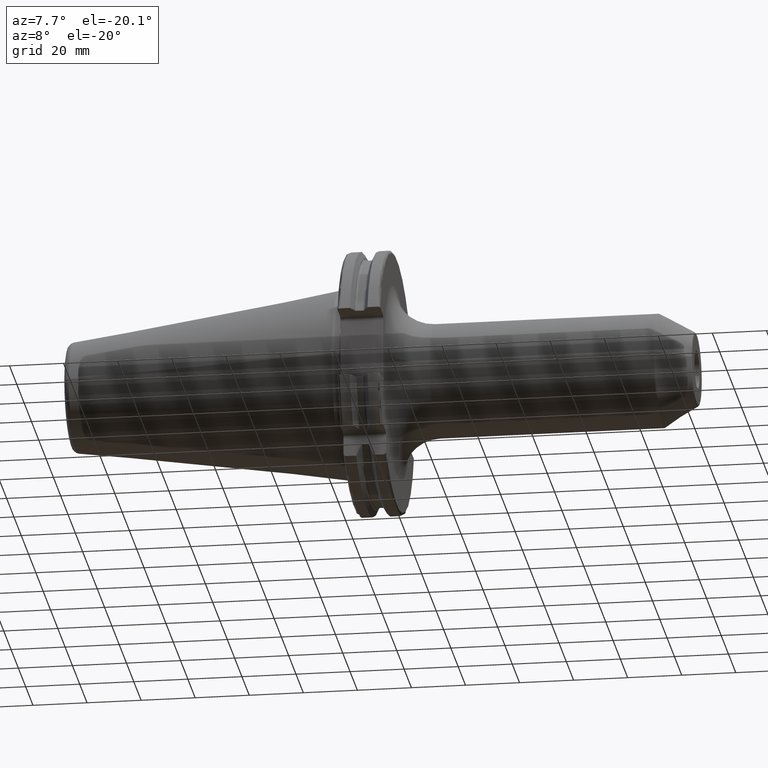
[diagram: clean part render]
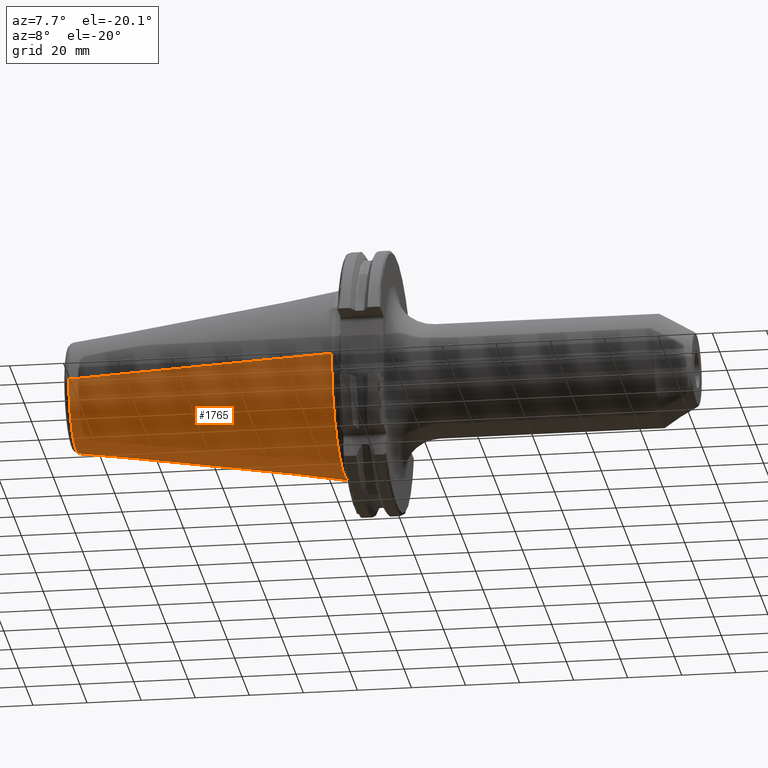
[diagram: same view with one face highlighted and labeled with its STEP entity id]
A machine part, auxiliary view. The second image highlights one B-rep face of the part: STEP entity #1765.
In plain terms, the highlighted conical surface has half-angle 8.298 deg.
Its self-contained STEP definition (entity closure, byte-faithful):
#32=CARTESIAN_POINT('',(-9.967471700563E1,0.E0,0.E0));
#33=DIRECTION('',(-1.E0,0.E0,0.E0));
#34=DIRECTION('',(0.E0,1.E0,0.E0));
#35=AXIS2_PLACEMENT_3D('',#32,#33,#34);
#47=DIRECTION('',(-9.895312636440E-1,-1.443186691705E-1,0.E0));
#48=VECTOR('',#47,1.002343617797E2);
#49=CARTESIAN_POINT('',(-4.896823332305E-1,3.485358204157E1,0.E0));
#50=LINE('',#49,#48);
#51=DIRECTION('',(-9.895312636440E-1,1.443186691705E-1,0.E0));
#52=VECTOR('',#51,1.002343617797E2);
#53=CARTESIAN_POINT('',(-4.896823332305E-1,-3.485358204157E1,0.E0));
#54=LINE('',#53,#52);
#55=CARTESIAN_POINT('',(-4.896823332305E-1,0.E0,0.E0));
#56=DIRECTION('',(-1.E0,0.E0,0.E0));
#57=DIRECTION('',(0.E0,1.E0,0.E0));
#58=AXIS2_PLACEMENT_3D('',#55,#56,#57);
#1417=CARTESIAN_POINT('',(-9.967471700563E1,2.038789234437E1,0.E0));
#1419=VERTEX_POINT('',#1417);
#1421=CARTESIAN_POINT('',(-9.967471700563E1,-2.038789234437E1,0.E0));
#1423=VERTEX_POINT('',#1421);
#1485=CARTESIAN_POINT('',(-4.896823332305E-1,3.485358204157E1,0.E0));
#1486=VERTEX_POINT('',#1485);
#1487=CARTESIAN_POINT('',(-4.896823332305E-1,-3.485358204157E1,0.E0));
#1488=VERTEX_POINT('',#1487);
#1753=CARTESIAN_POINT('',(-5.008219966943E1,0.E0,0.E0));
#1754=DIRECTION('',(1.E0,0.E0,0.E0));
#1755=DIRECTION('',(0.E0,-1.E0,0.E0));
#1756=AXIS2_PLACEMENT_3D('',#1753,#1754,#1755);
#1757=CONICAL_SURFACE('',#1756,2.762073719297E1,8.297826828206E0);
#1758=ORIENTED_EDGE('',*,*,#1743,.T.);
#1759=ORIENTED_EDGE('',*,*,#1720,.T.);
#1760=ORIENTED_EDGE('',*,*,#1747,.F.);
#1762=ORIENTED_EDGE('',*,*,#1761,.F.);
#1763=EDGE_LOOP('',(#1758,#1759,#1760,#1762));
#1764=FACE_OUTER_BOUND('',#1763,.F.);
#1765=ADVANCED_FACE('',(#1764),#1757,.T.);
#36=CIRCLE('',#35,2.038789234437E1);
#59=CIRCLE('',#58,3.485358204157E1);
#1720=EDGE_CURVE('',#1419,#1423,#36,.T.);
#1743=EDGE_CURVE('',#1486,#1419,#50,.T.);
#1747=EDGE_CURVE('',#1488,#1423,#54,.T.);
#1761=EDGE_CURVE('',#1486,#1488,#59,.T.);